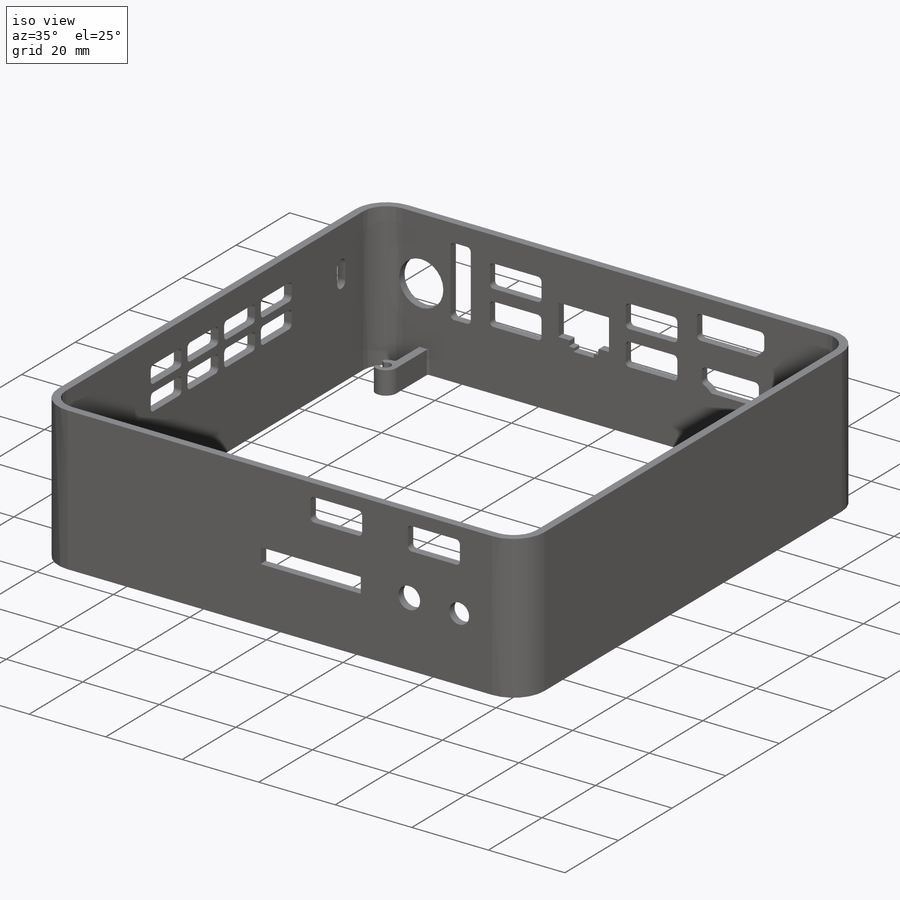
[diagram: iso view]
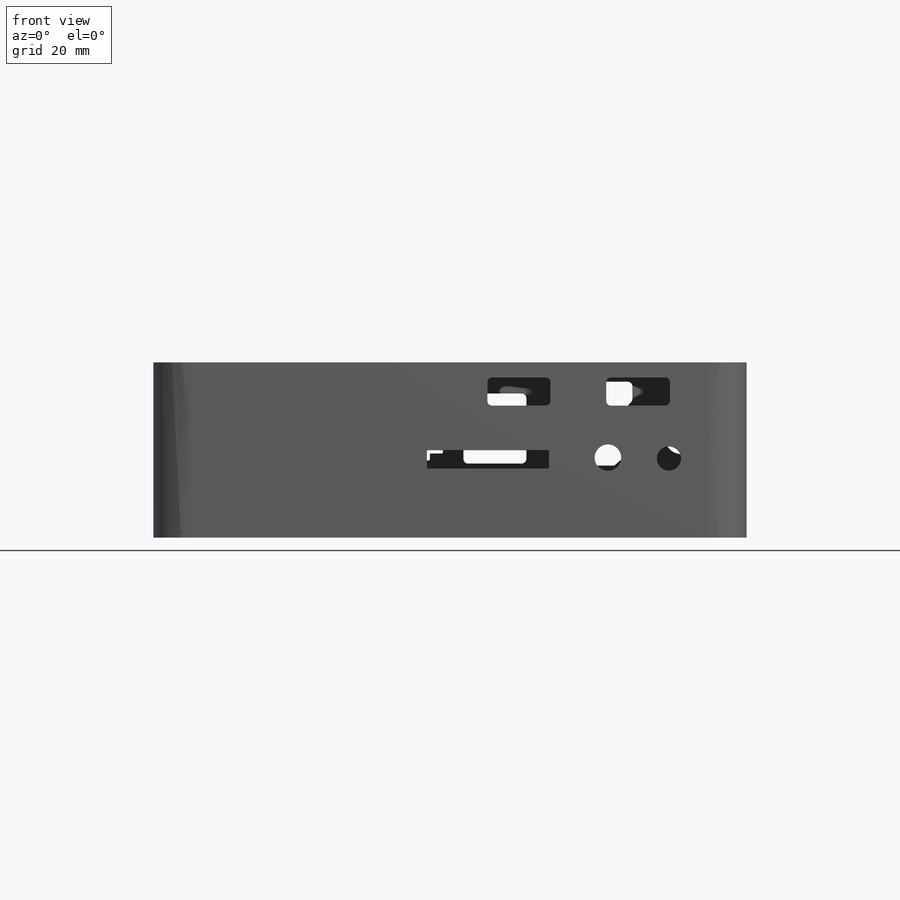
[diagram: front view]
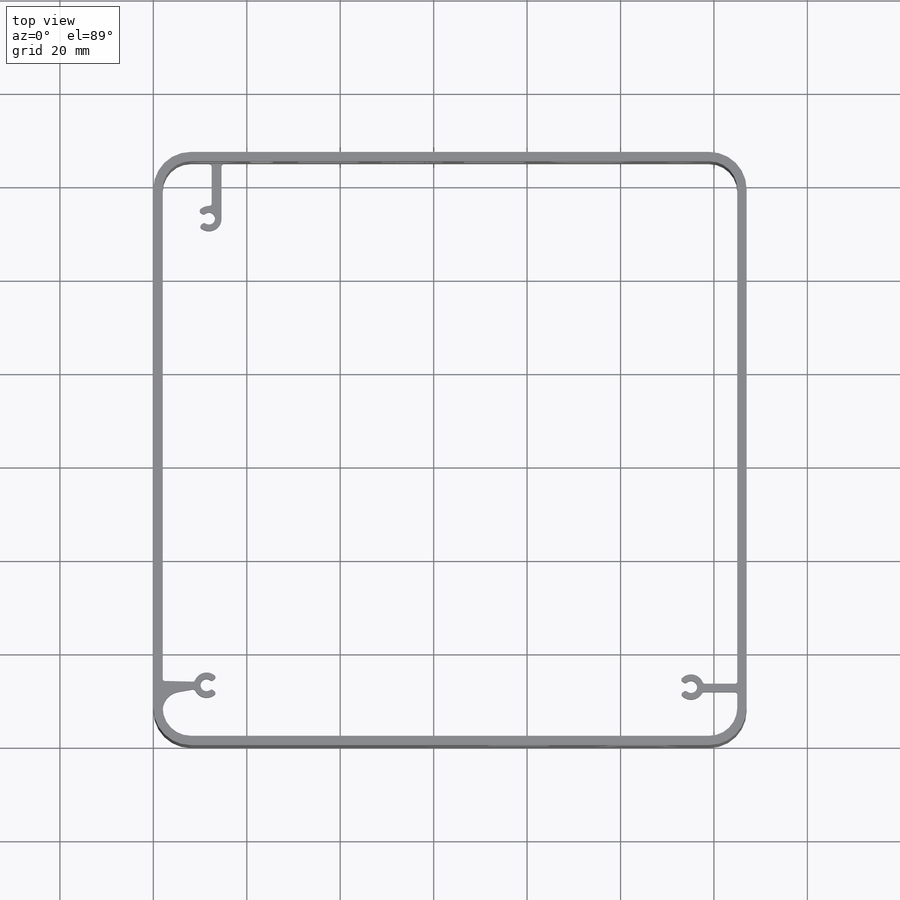
[diagram: top view]
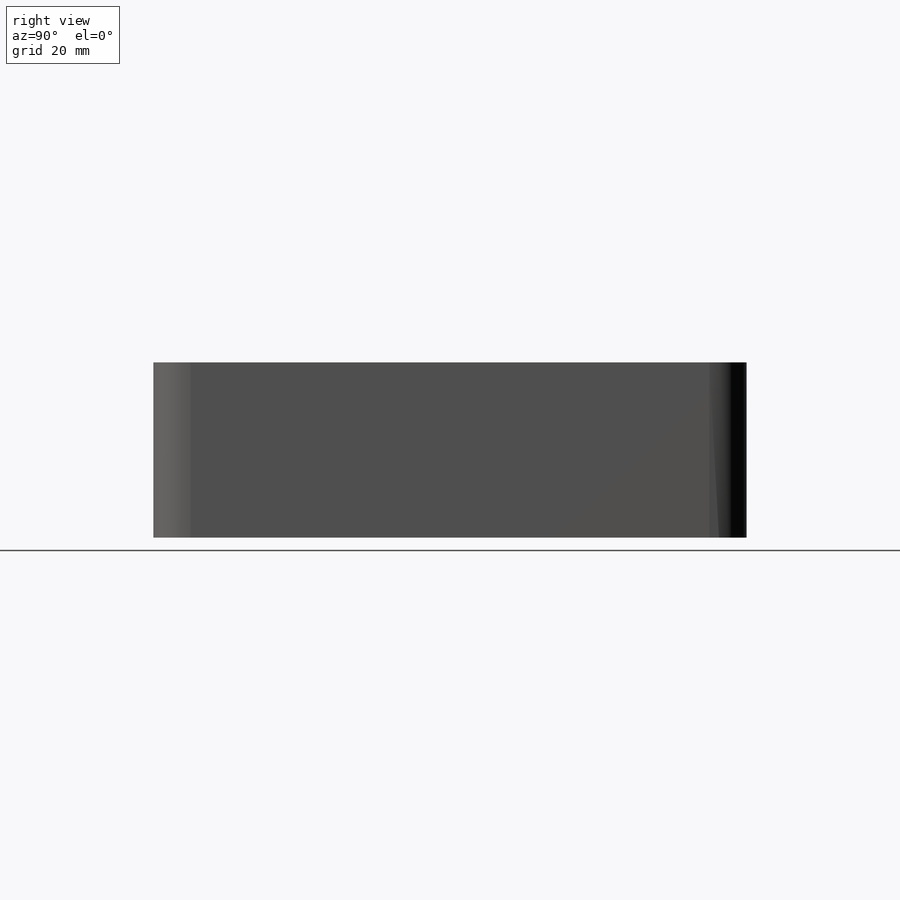
[diagram: right view]
SOLIDWORKS PART (.sldprt)
format: sldprt  version: not decoded by parser v0  size: 1,068,032 bytes
history: native  units: mm
features: sketch x7, cut_extrude x5, extrude x2, pattern_linear x2, material x1, fillet x1 (+11 scaffold rows collapsed)
feature tree (29):
  scaffold x11  (default folders/planes/origin — collapsed)
  material  "Material <not specified>"
  sketch  "Sketch1"  dims[D3=8.0mm D1=127.0mm D2=127.0mm D4=2.0mm]
  extrude  "Boss-Extrude1"  Depth=37.5mm
  sketch  "Sketch12"  dims[c1.D5=1.0mm c1.D1=4.5mm c1.D2=11.5mm c1.D3=34.4mm c1.D4=18.9mm c2.D3=34.4mm c2.D1=39.65mm c3.D3=26.7mm c3.D4=4.5mm]
  cut_extrude  "Cut-Extrude2"  [1 undecoded]
  pattern_linear  "LPattern1"  Count1=2 Count2=4 Spacing1=6.5mm Spacing2=13.7mm
  sketch  "Sketch18"  dims[D2=1.5mm D1=4.0mm D3=9.65mm D4=16.25mm]
  cut_extrude  "Cut-Extrude8"  [1 undecoded]
  sketch  "Sketch15"  dims[c1.D13=5.7mm c1.D14=5.2mm c1.D15=1.0mm c1.D3=1.0mm c1.D2=0.2mm c1.D1=3.7mm c2.D2=25.3mm c2.D3=16.6mm c2.D4=24.9mm c2.D5=6.5mm c2.D6=18.8mm c2.D7=52.6mm c2.D8=16.7mm c2.D9=18.1mm c2.D10=78.5mm c2.D11=90.6mm c2.D12=17.9mm c3.D4=24.9mm c3.D3=16.6mm c3.D11=90.6mm c3.D12=15.0mm c4.D4=13.6mm c4.D5=13.5mm c4.D6=6.0mm c4.D7=6.0mm c4.D8=26.1mm c4.D9=4.0mm c4.D10=58.55mm c4.D11=71.5mm c4.D12=96.95mm c4.D16=97.3mm c4.D17=110.35mm c4.D18=16.9mm c4.D19=17.1mm c4.D20=14.7mm c4.D21=3.25mm c4.D22=3.25mm]
  cut_extrude  "Cut-Extrude5"  Depth=2mm
  sketch  "Sketch16"  dims[c1.D1=7.0mm c1.D5=4.2mm c1.D19=1.0mm c1.D6=11.5mm c1.D7=1.0mm c1.D8=1.0mm c1.D9=0.25mm c1.D2=2.4mm c1.D3=2.4mm c1.D4=5.7mm c2.D6=91.0mm c2.D7=15.0mm c2.D8=67.1mm c2.D9=9.1mm c2.D10=14.9mm c2.D11=6.0mm c2.D12=13.5mm c2.D13=11.6mm c2.D14=14.2mm c2.D15=48.7mm c2.D16=17.7mm c2.D17=29.5mm c2.D18=8.8mm c3.D15=48.7mm]
  cut_extrude  "Cut-Extrude6"  [1 undecoded]
  pattern_linear  "LPattern2"  Count1=2 Count2=2 Spacing1=35.5mm Spacing2=9mm
  sketch  "Sketch19"
  extrude  "Boss-Extrude2"  Depth=6mm
  sketch  "Sketch20"  dims[D2=1.3mm D3=2.7mm D4=13.4mm D5=11.4mm D6=11.9mm D7=13.0mm D8=11.9mm D9=13.7mm D1=2.0mm]
  cut_extrude  "Cut-Extrude9"  [1 undecoded]
  fillet  "Fillet1"  Radius=0.5mm
decode coverage: 12 of 17 modeling features carry decoded parameters
note: 4 parameter values undecoded
summary: no parameter record found for 4 features
note: suppression state not decoded; provenance and decode notes live in map.json
